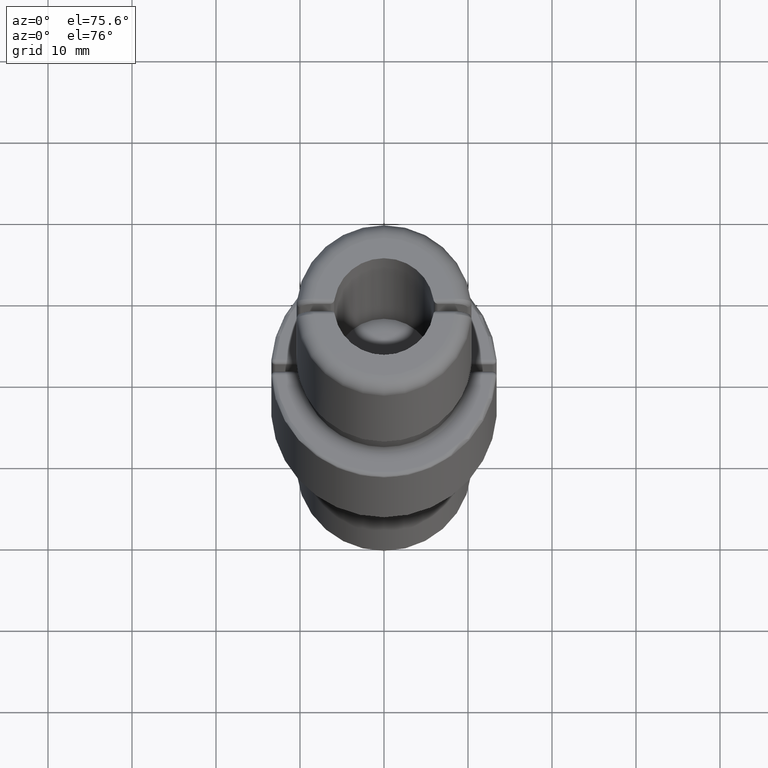
[diagram: clean part render]
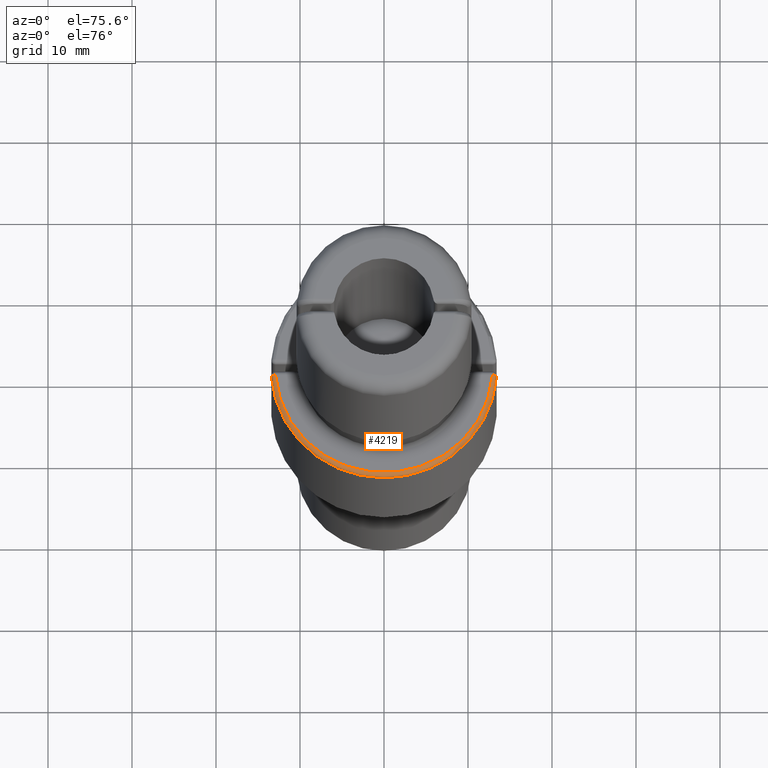
[diagram: same view with one face highlighted and labeled with its STEP entity id]
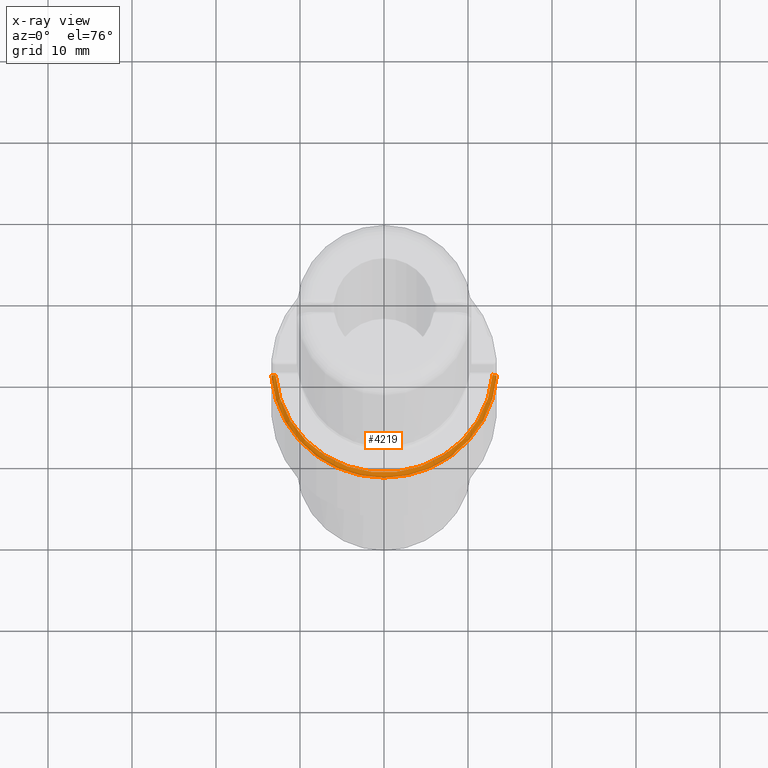
[diagram: x-ray of the same camera — body ghosted, the highlighted face saturated]
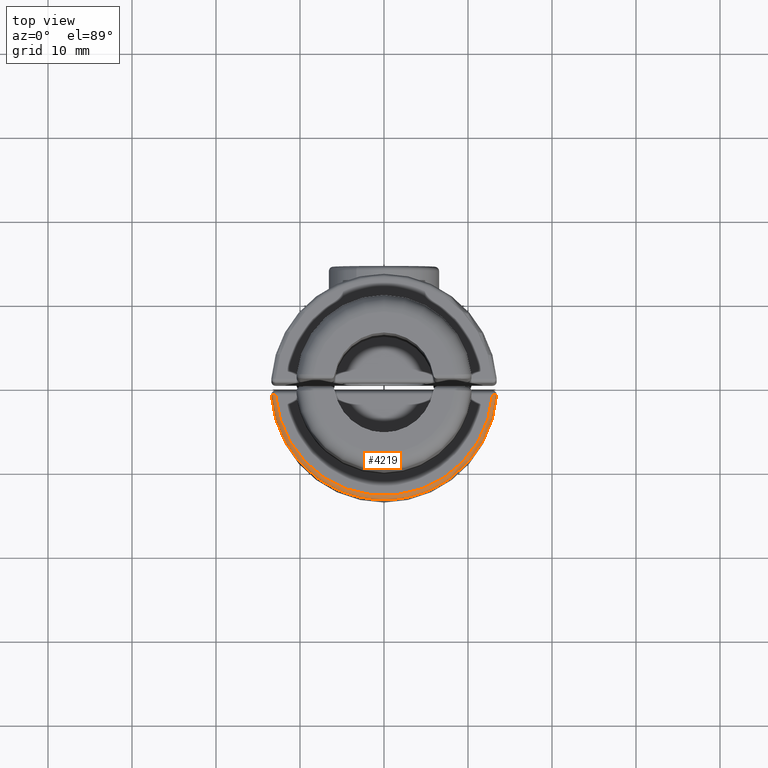
[diagram: same view with one face highlighted and labeled with its STEP entity id]
A machine part, auxiliary view. The second image highlights one B-rep face of the part: STEP entity #4219.
The next image is the same camera in x-ray: the body ghosted, the highlighted face saturated — about 0% of this face is hidden behind the body in this view.
A second angle (top view) of the same face is appended — the face is thin or edge-on in the first view.
In plain terms, the highlighted toroidal blend (fillet) surface has major radius 12.95 mm and minor (blend) radius 0.5 mm.
Its self-contained STEP definition (entity closure, byte-faithful):
#4 = CARTESIAN_POINT ( 'NONE',  ( -13.41376022940241164, 0.5366795366795369393, -9.500000000000000000 ) ) ;
#675 = AXIS2_PLACEMENT_3D ( 'NONE', #9070, #781, #9034 ) ;
#767 = DIRECTION ( 'NONE',  ( 0.000000000000000000, 0.000000000000000000, 1.000000000000000000 ) ) ;
#781 = DIRECTION ( 'NONE',  ( -0.000000000000000000, -0.000000000000000000, -1.000000000000000000 ) ) ;
#806 = DIRECTION ( 'NONE',  ( -0.07335907335907380922, 0.9973055932641199384, 0.000000000000000000 ) ) ;
#947 = DIRECTION ( 'NONE',  ( 0.9973055932641199384, -0.07335907335907351778, 0.000000000000000000 ) ) ;
#1223 = EDGE_CURVE ( 'NONE', #4740, #1405, #2379, .T. ) ;
#1405 = VERTEX_POINT ( 'NONE', #6951 ) ;
#1566 = DIRECTION ( 'NONE',  ( 1.000000000000000000, 0.000000000000000000, 0.000000000000000000 ) ) ;
#1600 = DIRECTION ( 'NONE',  ( 0.000000000000000000, 0.000000000000000000, 1.000000000000000000 ) ) ;
#1615 = VERTEX_POINT ( 'NONE', #4 ) ;
#1677 = CIRCLE ( 'NONE', #4451, 0.4999999999999994449 ) ;
#1745 = VERTEX_POINT ( 'NONE', #8391 ) ;
#1994 = AXIS2_PLACEMENT_3D ( 'NONE', #6065, #1600, #6800 ) ;
#2379 = CIRCLE ( 'NONE', #675, 12.94999999999999929 ) ;
#2862 = CARTESIAN_POINT ( 'NONE',  ( -12.91510743277035367, 0.5000000000000002220, -10.00000000000000000 ) ) ;
#3019 = TOROIDAL_SURFACE ( 'NONE', #9507, 12.94999999999999929, 0.5000000000000000000 ) ;
#4219 = ADVANCED_FACE ( 'NONE', ( #4449 ), #3019, .T. ) ;
#4277 = ORIENTED_EDGE ( 'NONE', *, *, #5790, .T. ) ;
#4293 = EDGE_CURVE ( 'NONE', #1745, #1615, #8005, .T. ) ;
#4315 = ORIENTED_EDGE ( 'NONE', *, *, #1223, .F. ) ;
#4449 = FACE_OUTER_BOUND ( 'NONE', #6519, .T. ) ;
#4451 = AXIS2_PLACEMENT_3D ( 'NONE', #8333, #6048, #947 ) ;
#4510 = CARTESIAN_POINT ( 'NONE',  ( 12.91510743277035367, 0.5000000000000051070, -9.500000000000000000 ) ) ;
#4627 = CIRCLE ( 'NONE', #6606, 0.4999999999999995004 ) ;
#4740 = VERTEX_POINT ( 'NONE', #2862 ) ;
#5147 = ORIENTED_EDGE ( 'NONE', *, *, #9536, .T. ) ;
#5232 = CARTESIAN_POINT ( 'NONE',  ( 8.266365894244642961E-17, -0.4500000000000007327, -9.500000000000000000 ) ) ;
#5790 = EDGE_CURVE ( 'NONE', #1745, #1405, #4627, .T. ) ;
#6048 = DIRECTION ( 'NONE',  ( 0.07335907335907343452, 0.9973055932641199384, -0.000000000000000000 ) ) ;
#6065 = CARTESIAN_POINT ( 'NONE',  ( 8.266365894244642961E-17, -0.4500000000000007327, -9.500000000000000000 ) ) ;
#6519 = EDGE_LOOP ( 'NONE', ( #9405, #4277, #4315, #5147 ) ) ;
#6606 = AXIS2_PLACEMENT_3D ( 'NONE', #4510, #806, #8257 ) ;
#6800 = DIRECTION ( 'NONE',  ( 1.000000000000000000, 0.000000000000000000, 0.000000000000000000 ) ) ;
#6951 = CARTESIAN_POINT ( 'NONE',  ( 12.91510743277035189, 0.5000000000000047740, -10.00000000000000000 ) ) ;
#8005 = CIRCLE ( 'NONE', #1994, 13.44999999999999929 ) ;
#8257 = DIRECTION ( 'NONE',  ( -0.9973055932641198273, -0.07335907335907393412, 0.000000000000000000 ) ) ;
#8333 = CARTESIAN_POINT ( 'NONE',  ( -12.91510743277035367, 0.5000000000000002220, -9.500000000000000000 ) ) ;
#8391 = CARTESIAN_POINT ( 'NONE',  ( 13.41376022940240986, 0.5366795366795419353, -9.500000000000000000 ) ) ;
#9034 = DIRECTION ( 'NONE',  ( 1.000000000000000000, 0.000000000000000000, 0.000000000000000000 ) ) ;
#9070 = CARTESIAN_POINT ( 'NONE',  ( 8.266365894244642961E-17, -0.4500000000000007327, -10.00000000000000000 ) ) ;
#9405 = ORIENTED_EDGE ( 'NONE', *, *, #4293, .F. ) ;
#9507 = AXIS2_PLACEMENT_3D ( 'NONE', #5232, #767, #1566 ) ;
#9536 = EDGE_CURVE ( 'NONE', #4740, #1615, #1677, .T. ) ;